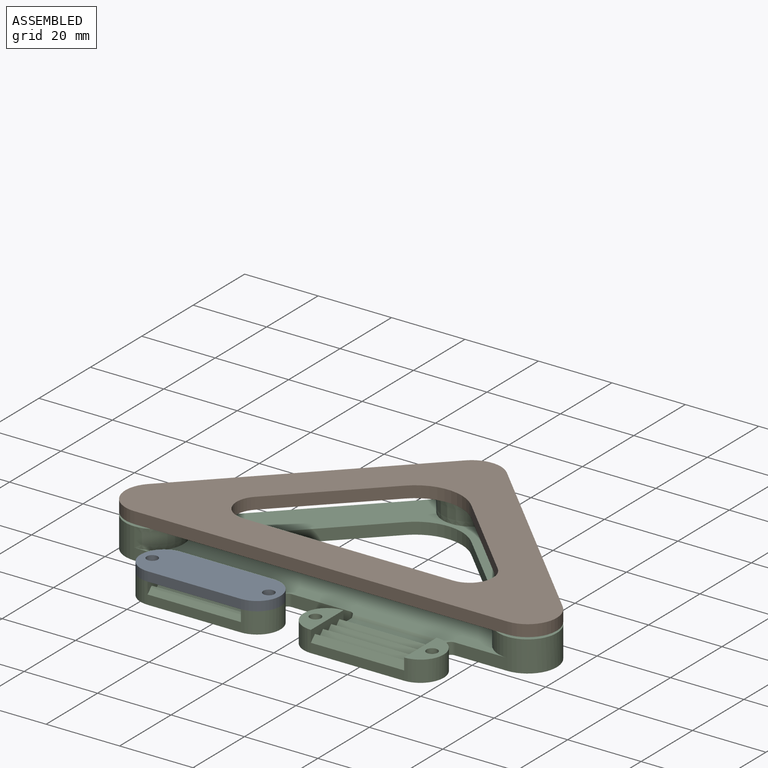
[diagram: assembled view]
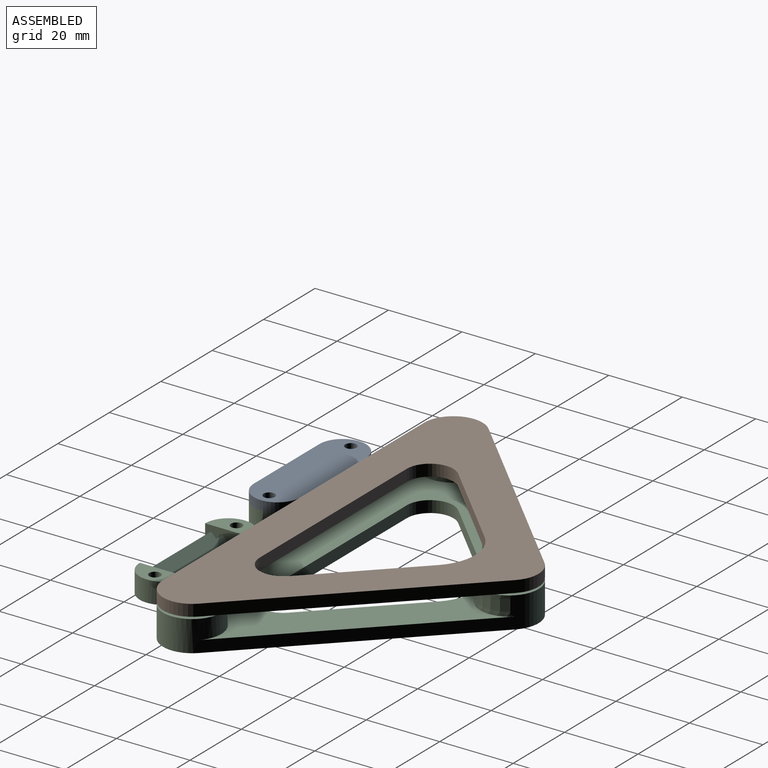
[diagram: assembled view, second angle]
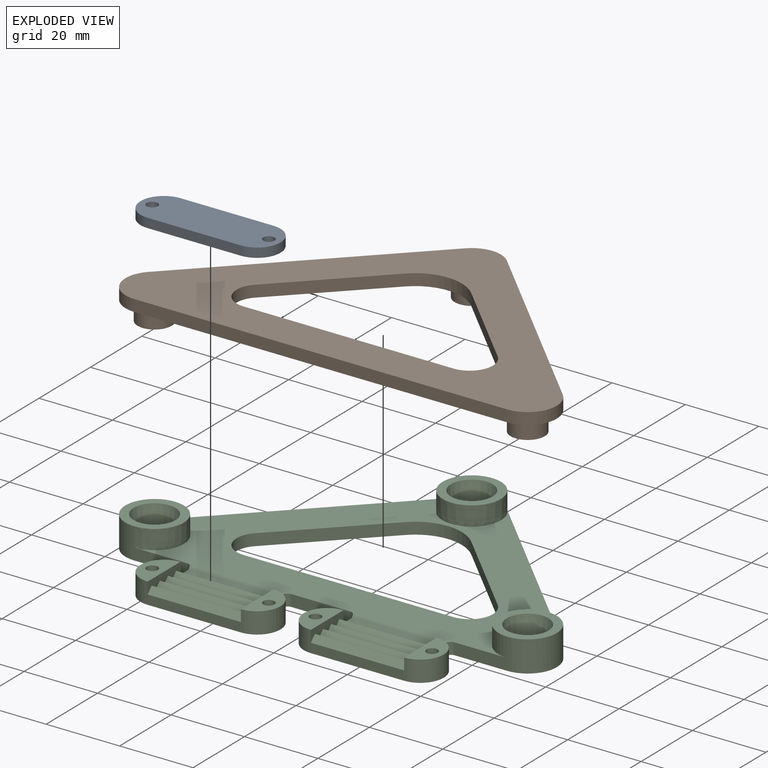
[diagram: exploded view]
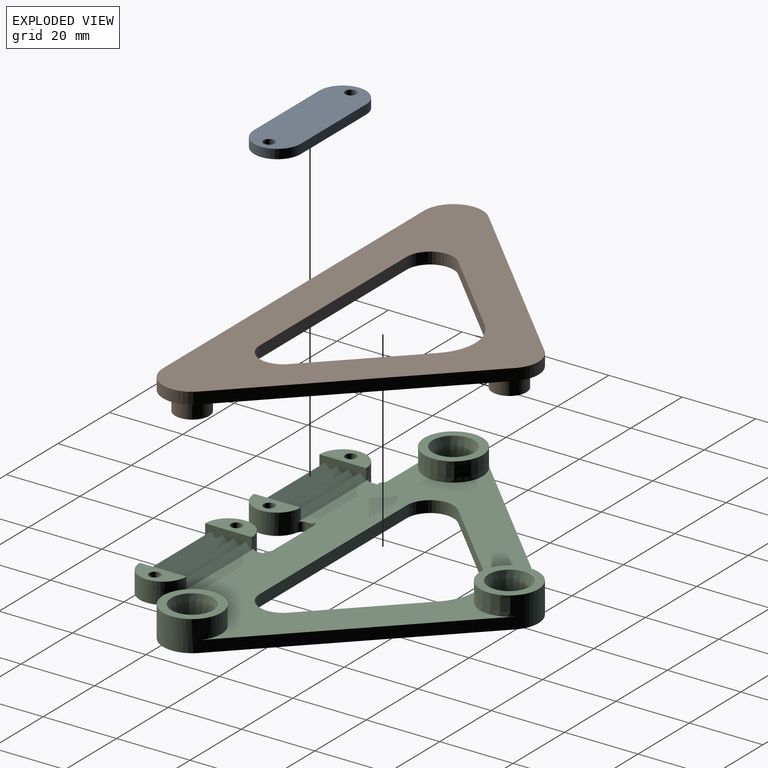
[diagram: exploded view, second angle]
ASSEMBLY  parts=3 mates=3
PART A: 20 faces, bbox 38.1x12.7x4.1 mm
  f0: plane 38.1x12.7mm, normal (0,0,1), area 216.9mm2, adj f1,f2,f3,f4,f7,f8,f9,f12
  f1: plane 25.4x2.54mm, normal (0,1,0), area 64.5mm2, adj f0,f5,f18,f19
  f2: plane 25.4x2.54mm, normal (0,-1,0), area 64.5mm2, adj f0,f5,f18,f19
  f3: cylinder r=1.52mm len=3.05mm, axis (0,0,-1), area 24.3mm2, adj f0,f5
  f4: cylinder r=1.52mm len=3.05mm, axis (0,0,-1), area 24.3mm2, adj f0,f5
  f5: plane 38.1x12.7mm, normal (0,0,-1), area 434.7mm2, adj f1,f2,f3,f4,f18,f19
  f6: plane 22.86x1.59mm, normal (0,-0.71,0.71), area 51.3mm2, adj f7,f8,f9,f11
  f7: plane 22.86x1.59mm, normal (0,0.71,0.71), area 51.3mm2, adj f0,f6,f8,f9
  f8: plane 3.18x1.59mm, normal (1,0,0), area 2.5mm2, adj f0,f6,f7
  f9: plane 3.18x1.59mm, normal (-1,0,0), area 2.5mm2, adj f0,f6,f7
  f10: plane 22.86x1.59mm, normal (0,-0.71,0.71), area 51.3mm2, adj f11,f12,f13,f14
  f11: plane 22.86x1.59mm, normal (0,0.71,0.71), area 51.3mm2, adj f6,f10,f12,f13
  f12: plane 3.18x1.59mm, normal (1,0,0), area 2.5mm2, adj f0,f10,f11
  f13: plane 3.18x1.59mm, normal (-1,0,0), area 2.5mm2, adj f0,f10,f11
  f14: plane 22.86x1.59mm, normal (0,0.71,0.71), area 51.3mm2, adj f10,f15,f16,f17
  f15: plane 22.86x1.59mm, normal (0,-0.71,0.71), area 51.3mm2, adj f0,f14,f16,f17
  f16: plane 3.18x1.59mm, normal (1,0,0), area 2.5mm2, adj f0,f14,f15
  f17: plane 3.18x1.59mm, normal (-1,0,0), area 2.5mm2, adj f0,f14,f15
  f18: cylinder r=6.35mm len=12.7mm, axis (0,0,-1), area 50.7mm2, adj f0,f1,f2,f5
  f19: cylinder r=6.35mm len=12.7mm, axis (0,0,-1), area 50.7mm2, adj f0,f1,f2,f5
PART B: 26 faces, bbox 117.5x66.7x8.4 mm
  f0: plane 50.8x50.8mm, normal (0.71,0.71,0), area 228.1mm2, adj f1,f11,f12,f13
  f1: cylinder r=7.94mm len=11.23mm, axis (0,0,-1), area 39.6mm2, adj f0,f2,f12,f13
  f2: plane 50.8x50.8mm, normal (-0.71,0.71,0), area 228.1mm2, adj f1,f3,f12,f13
  f3: cylinder r=7.94mm len=13.55mm, axis (0,0,-1), area 59.4mm2, adj f2,f4,f12,f13
  f4: plane 101.6x3.18mm, normal (0,-1,0), area 322.6mm2, adj f3,f11,f12,f13
  f5: cylinder r=6.35mm len=10.84mm, axis (0,0,-1), area 47.5mm2, adj f6,f10,f12,f13
  f6: plane 24.08x24.08mm, normal (0.71,-0.71,0), area 108.1mm2, adj f5,f7,f12,f13
  f7: cylinder r=12.7mm len=17.96mm, axis (0,0,-1), area 63.3mm2, adj f6,f8,f12,f13
  f8: plane 24.08x24.08mm, normal (-0.71,-0.71,0), area 108.1mm2, adj f7,f9,f12,f13
  f9: cylinder r=6.35mm len=10.84mm, axis (0,0,-1), area 47.5mm2, adj f8,f10,f12,f13
  f10: plane 57.14x3.18mm, normal (0,1,0), area 181.4mm2, adj f5,f9,f12,f13
  f11: cylinder r=7.94mm len=13.55mm, axis (0,0,-1), area 59.4mm2, adj f0,f4,f12,f13
  f12: plane 117.48x66.68mm, normal (0,0,1), area 2932.5mm2, adj f0,f1,f2,f3,f4,f5,f6,f7
  f13: plane 117.48x66.68mm, normal (0,0,-1), area 2728.9mm2, adj f0,f1,f2,f3,f4,f5,f6,f7
  f14: cylinder r=1.6mm len=5.21mm, axis (0,0,1), area 52.4mm2, adj f16,f17
  f15: cylinder r=4.65mm len=9.3mm, axis (0,0,1), area 152.1mm2, adj f13,f16
  f16: plane 9.3x9.3mm, normal (0,0,-1), area 59.8mm2, adj f14,f15
  f17: plane 3.2x3.2mm, normal (0,0,-1), area 8mm2, adj f14
  f18: cylinder r=1.6mm len=5.21mm, axis (0,0,1), area 52.4mm2, adj f20,f21
  f19: cylinder r=4.65mm len=9.3mm, axis (0,0,1), area 152.1mm2, adj f13,f20
  f20: plane 9.3x9.3mm, normal (0,0,-1), area 59.8mm2, adj f18,f19
  f21: plane 3.2x3.2mm, normal (0,0,-1), area 8mm2, adj f18
  f22: cylinder r=1.6mm len=5.21mm, axis (0,0,1), area 52.4mm2, adj f24,f25
  f23: cylinder r=4.65mm len=9.3mm, axis (0,0,1), area 152.1mm2, adj f13,f24
  f24: plane 9.3x9.3mm, normal (0,0,-1), area 59.8mm2, adj f22,f23
  f25: plane 3.2x3.2mm, normal (0,0,-1), area 8mm2, adj f22
PART C: 83 faces, bbox 117.5x84.2x8.4 mm
  f0: plane 15.88x3.18mm, normal (0,-1,0), area 50.4mm2, adj f5,f44,f67,f70
  f1: plane 14.29x3.18mm, normal (0,-1,0), area 45.4mm2, adj f5,f44,f46,f69
  f2: plane 12.7x3.18mm, normal (1,0,0), area 30.2mm2, adj f6,f8,f9,f10,f11,f12,f13,f14
  f3: plane 12.7x3.18mm, normal (-1,0,0), area 30.2mm2, adj f7,f8,f9,f10,f11,f12,f13,f14
  f4: plane 25.4x2.54mm, normal (0,-1,0), area 64.5mm2, adj f5,f8,f18,f19
  f5: plane 117.48x84.14mm, normal (0,0,-1), area 4047.5mm2, adj f0,f1,f4,f16,f17,f18,f19,f22
  f6: plane 12.7x6.35mm, normal (0,0,1), area 56mm2, adj f2,f17,f19
  f7: plane 12.7x6.35mm, normal (0,0,1), area 56mm2, adj f3,f16,f18
  f8: plane 25.4x1.59mm, normal (0,-0.71,0.71), area 57mm2, adj f2,f3,f4,f9
  f9: plane 25.4x1.59mm, normal (0,0.71,0.71), area 57mm2, adj f2,f3,f8,f10
  f10: plane 25.4x1.59mm, normal (0,-0.71,0.71), area 57mm2, adj f2,f3,f9,f11
  f11: plane 25.4x1.59mm, normal (0,0.71,0.71), area 57mm2, adj f2,f3,f10,f12
  f12: plane 25.4x1.59mm, normal (0,-0.71,0.71), area 57mm2, adj f2,f3,f11,f13
  f13: plane 25.4x1.59mm, normal (0,0.71,0.71), area 57mm2, adj f2,f3,f12,f15
  f14: plane 25.4x1.59mm, normal (0,0.71,0.71), area 57mm2, adj f2,f3,f15,f63
  f15: plane 25.4x1.59mm, normal (0,-0.71,0.71), area 57mm2, adj f2,f3,f13,f14
  f16: cylinder r=1.52mm len=5.72mm, axis (0,0,1), area 54.7mm2, adj f5,f7
  f17: cylinder r=1.52mm len=5.72mm, axis (0,0,1), area 54.7mm2, adj f5,f6
  f18: cylinder r=6.35mm len=12.7mm, axis (0,0,-1), area 110.8mm2, adj f3,f4,f5,f7,f63,f73
  f19: cylinder r=6.35mm len=12.7mm, axis (0,0,1), area 110.8mm2, adj f2,f4,f5,f6,f63,f74
  f20: plane 12.7x3.18mm, normal (-1,0,0), area 30.2mm2, adj f23,f25,f26,f27,f28,f29,f30,f31
  f21: plane 12.7x3.18mm, normal (1,0,0), area 30.2mm2, adj f24,f25,f26,f27,f28,f29,f30,f31
  f22: plane 25.4x2.54mm, normal (0,-1,0), area 64.5mm2, adj f5,f25,f35,f36
  f23: plane 12.7x6.35mm, normal (0,0,1), area 56mm2, adj f20,f34,f36
  f24: plane 12.7x6.35mm, normal (0,0,1), area 56mm2, adj f21,f33,f35
  f25: plane 25.4x1.59mm, normal (0,-0.71,0.71), area 57mm2, adj f20,f21,f22,f26
  f26: plane 25.4x1.59mm, normal (0,0.71,0.71), area 57mm2, adj f20,f21,f25,f27
  f27: plane 25.4x1.59mm, normal (0,-0.71,0.71), area 57mm2, adj f20,f21,f26,f28
  f28: plane 25.4x1.59mm, normal (0,0.71,0.71), area 57mm2, adj f20,f21,f27,f29
  f29: plane 25.4x1.59mm, normal (0,-0.71,0.71), area 57mm2, adj f20,f21,f28,f30
  f30: plane 25.4x1.59mm, normal (0,0.71,0.71), area 57mm2, adj f20,f21,f29,f32
  f31: plane 25.4x1.59mm, normal (0,0.71,0.71), area 57mm2, adj f20,f21,f32,f64
  f32: plane 25.4x1.59mm, normal (0,-0.71,0.71), area 57mm2, adj f20,f21,f30,f31
  f33: cylinder r=1.52mm len=5.72mm, axis (0,0,1), area 54.7mm2, adj f5,f24
  f34: cylinder r=1.52mm len=5.72mm, axis (0,0,1), area 54.7mm2, adj f5,f23
  f35: cylinder r=6.35mm len=12.7mm, axis (0,0,-1), area 110.8mm2, adj f5,f21,f22,f24,f64,f71
  f36: cylinder r=6.35mm len=12.7mm, axis (0,0,1), area 110.8mm2, adj f5,f20,f22,f23,f64,f72
  f37: plane 14.29x3.18mm, normal (0,-1,0), area 45.4mm2, adj f5,f44,f47,f68
  f38: cylinder r=3.17mm len=6.35mm, axis (0,0,-1), area 35.5mm2, adj f42,f57
  f39: cylinder r=3.17mm len=6.35mm, axis (0,0,-1), area 35.5mm2, adj f41,f56
  f40: cylinder r=3.17mm len=6.35mm, axis (0,0,-1), area 35.5mm2, adj f43,f55
  f41: plane 9.53x9.53mm, normal (0,0,1), area 39.6mm2, adj f39,f59
  f42: plane 9.53x9.53mm, normal (0,0,1), area 39.6mm2, adj f38,f58
  f43: plane 9.53x9.53mm, normal (0,0,1), area 39.6mm2, adj f40,f60
  f44: plane 112.83x65.3mm, normal (0,0,1), area 2389.3mm2, adj f0,f1,f37,f45,f47,f48,f50,f52
  f45: plane 50.8x50.8mm, normal (-0.71,0.71,0), area 228.1mm2, adj f5,f44,f46,f49
  f46: cylinder r=7.94mm len=13.55mm, axis (0,0,-1), area 157.2mm2, adj f1,f5,f45,f50,f51
  f47: cylinder r=7.94mm len=15.88mm, axis (0,0,-1), area 320.3mm2, adj f5,f37,f44,f48,f54
  f48: plane 50.8x50.8mm, normal (0.71,0.71,0), area 228.1mm2, adj f5,f44,f47,f49
  f49: cylinder r=7.94mm len=11.23mm, axis (0,0,-1), area 104.8mm2, adj f5,f45,f48,f52,f53
  f50: extruded ~15.87x13.55mm, area 163.1mm2, adj f44,f46,f51
  f51: plane 15.88x15.88mm, normal (0,0,1), area 96.4mm2, adj f46,f50,f60
  f52: extruded ~15.86x13.55mm, area 195.8mm2, adj f44,f49,f53
  f53: plane 15.89x15.88mm, normal (0,0,1), area 96.4mm2, adj f49,f52,f58
  f54: plane 15.88x15.88mm, normal (0,0,1), area 96.4mm2, adj f47,f59
  f55: plane 6.35x6.35mm, normal (0,0,1), area 31.7mm2, adj f40
  f56: plane 6.35x6.35mm, normal (0,0,1), area 31.7mm2, adj f39
  f57: plane 6.35x6.35mm, normal (0,0,1), area 31.7mm2, adj f38
  f58: cone r=4.76mm half-angle=10deg, axis (0,0,1), area 174.4mm2, adj f42,f53
  f59: cone r=4.76mm half-angle=10deg, axis (0,0,1), area 174.4mm2, adj f41,f54
  f60: cone r=4.76mm half-angle=10deg, axis (0,0,1), area 174.4mm2, adj f43,f51
  f61: plane 2.54x1.75mm, normal (-1,0,0), area 4.4mm2, adj f5,f63,f69,f74
  f62: plane 2.54x1.75mm, normal (1,0,0), area 4.4mm2, adj f5,f63,f70,f73
  f63: plane 27.94x3.3mm, normal (0,0,1), area 81.4mm2, adj f14,f18,f19,f61,f62,f73,f74,f76
  f64: plane 27.94x3.3mm, normal (0,0,1), area 81.4mm2, adj f31,f35,f36,f65,f66,f71,f72,f75
  f65: plane 2.54x1.75mm, normal (-1,0,0), area 4.4mm2, adj f5,f64,f67,f71
  f66: plane 2.54x1.75mm, normal (1,0,0), area 4.4mm2, adj f5,f64,f68,f72
  f67: cylinder r=1.59mm len=3.18mm, axis (0,0,1), area 7.7mm2, adj f0,f5,f44,f65,f75
  f68: cylinder r=1.59mm len=3.18mm, axis (0,0,-1), area 7.7mm2, adj f5,f37,f44,f66,f75
  f69: cylinder r=1.59mm len=3.18mm, axis (0,0,1), area 7.7mm2, adj f1,f5,f44,f61,f76
  f70: cylinder r=1.59mm len=3.18mm, axis (0,0,-1), area 7.7mm2, adj f0,f5,f44,f62,f76
  f71: cylinder r=1.59mm len=2.54mm, axis (0,0,-1), area 5.5mm2, adj f5,f35,f64,f65
  f72: cylinder r=1.59mm len=2.54mm, axis (0,0,1), area 5.5mm2, adj f5,f36,f64,f66
  f73: cylinder r=1.59mm len=2.54mm, axis (0,0,-1), area 5.5mm2, adj f5,f18,f62,f63
  f74: cylinder r=1.59mm len=2.54mm, axis (0,0,1), area 5.5mm2, adj f5,f19,f61,f63
  f75: plane 25.68x0.65mm, normal (0,-0.71,0.71), area 22.9mm2, adj f44,f64,f67,f68
  f76: plane 25.68x0.65mm, normal (0,-0.71,0.71), area 22.9mm2, adj f44,f63,f69,f70
  f77: cylinder r=12.7mm len=17.96mm, axis (0,0,1), area 63.3mm2, adj f5,f44,f78,f82
  f78: plane 24.08x24.08mm, normal (0.71,-0.71,0), area 108.1mm2, adj f5,f44,f77,f79
  f79: cylinder r=6.35mm len=10.84mm, axis (0,0,1), area 47.5mm2, adj f5,f44,f78,f80
  f80: plane 57.14x3.18mm, normal (0,1,0), area 181.4mm2, adj f5,f44,f79,f81
  f81: cylinder r=6.35mm len=10.84mm, axis (0,0,1), area 47.5mm2, adj f5,f44,f80,f82
  f82: plane 24.08x24.08mm, normal (-0.71,-0.71,0), area 108.1mm2, adj f5,f44,f77,f81
PLACE A rot(axis=(1,0,0),180deg) t=(-22.22,-32.88,10.92)mm
PLACE B t=(-22.22,-32.88,-28.01)mm
PLACE C t=(-22.22,-32.88,-3.18)mm
MATE cylindrical B.f1 <-> C.f38  axis (0,0,1) through (0,36.97,3.19)mm
MATE revolute A.f4 <-> C.f16  axis (0,0,-1) through (-6.35,-32.88,2.54)mm
MATE cylindrical B.f3 <-> C.f40  axis (0,0,1) through (-50.8,-13.83,0.59)mm
